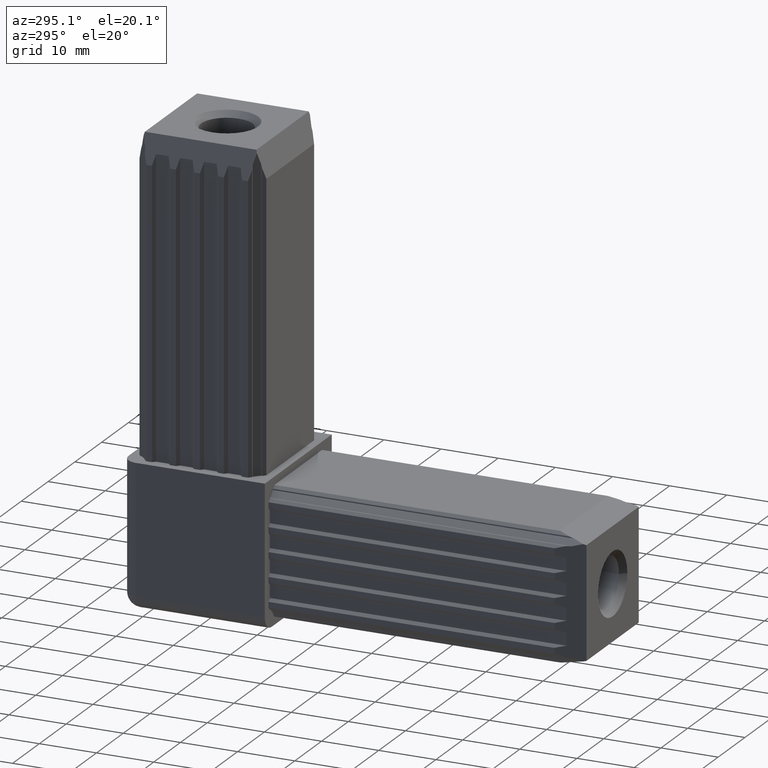
[diagram: clean part render]
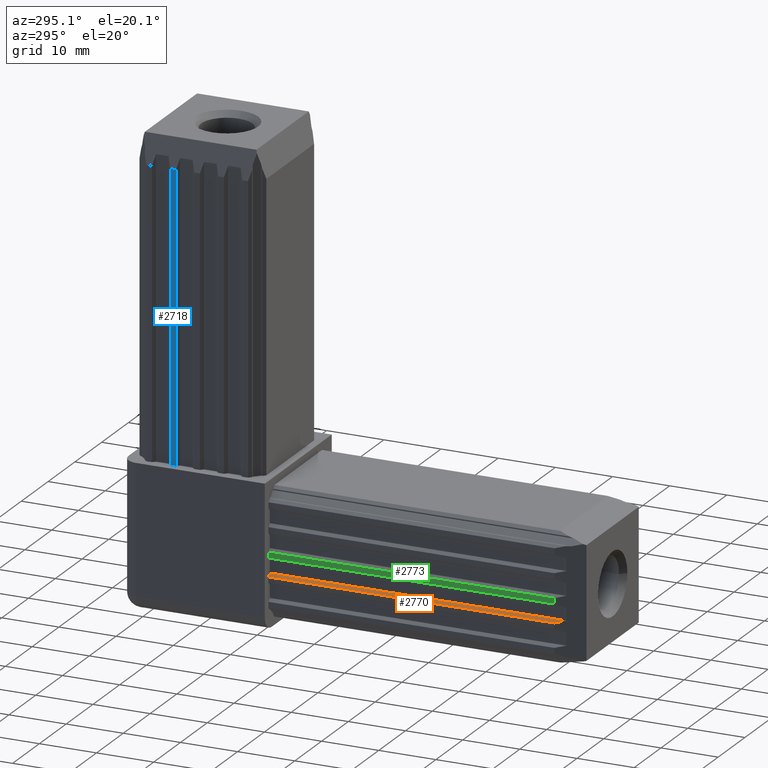
[diagram: same view with three faces highlighted in distinct colors, each labeled with its STEP entity id]
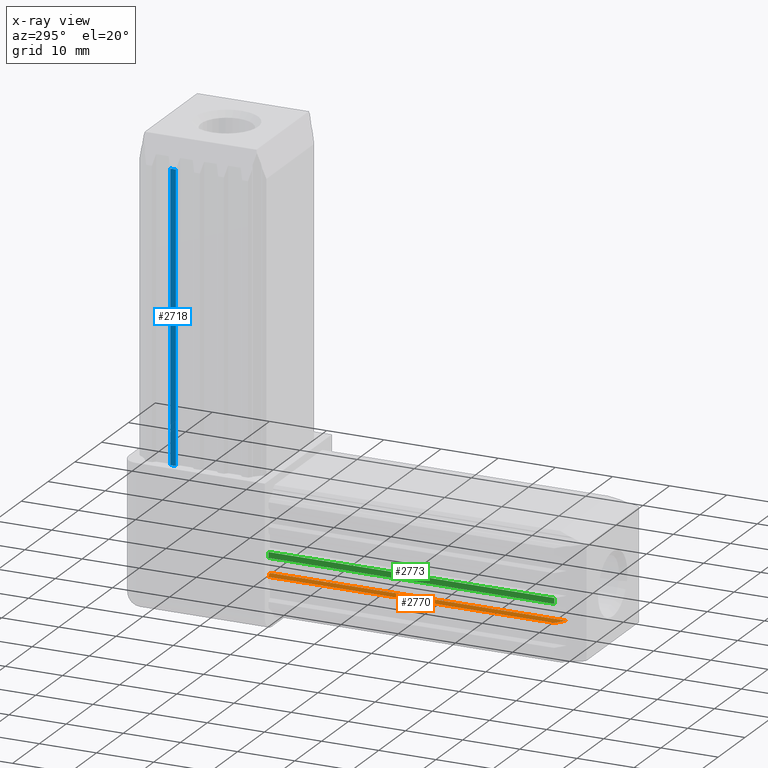
[diagram: x-ray of the same camera — body ghosted, the three highlighted faces saturated]
A machine part, auxiliary view with three faces highlighted in distinct colors.
The next image is the same camera in x-ray (body ghosted, the three faces saturated) — at least one of them is partly hidden behind the body in this view.
Their STEP definitions:

[orange] entity #2770 — the highlighted planar face has unit normal (-0.7071, 0, 0.7071).
#103=PLANE('',#2947);
#251=FACE_OUTER_BOUND('',#396,.T.);
#396=EDGE_LOOP('',(#2483,#2484,#2485,#2486));
#494=LINE('',#3831,#875);
#733=LINE('',#4304,#1114);
#785=LINE('',#4405,#1166);
#786=LINE('',#4407,#1167);
#875=VECTOR('',#3113,10.);
#1114=VECTOR('',#3434,10.);
#1166=VECTOR('',#3556,10.);
#1167=VECTOR('',#3559,10.);
#1275=VERTEX_POINT('',#3828);
#1276=VERTEX_POINT('',#3830);
#1468=VERTEX_POINT('',#4301);
#1469=VERTEX_POINT('',#4303);
#1550=EDGE_CURVE('',#1275,#1276,#494,.T.);
#1789=EDGE_CURVE('',#1468,#1469,#733,.T.);
#1841=EDGE_CURVE('',#1275,#1469,#785,.T.);
#1842=EDGE_CURVE('',#1276,#1468,#786,.T.);
#2483=ORIENTED_EDGE('',*,*,#1789,.F.);
#2484=ORIENTED_EDGE('',*,*,#1842,.F.);
#2485=ORIENTED_EDGE('',*,*,#1550,.F.);
#2486=ORIENTED_EDGE('',*,*,#1841,.T.);
#2770=ADVANCED_FACE('',(#251),#103,.T.);
#2947=AXIS2_PLACEMENT_3D('',#4406,#3557,#3558);
#3113=DIRECTION('',(0.707106781186557,0.,0.707106781186537));
#3434=DIRECTION('',(-0.250562807085733,0.935113126531031,-0.250562807085725));
#3556=DIRECTION('',(0.,-1.,0.));
#3557=DIRECTION('center_axis',(-0.707106781186538,0.,0.707106781186558));
#3558=DIRECTION('ref_axis',(-0.707106781186557,0.,-0.707106781186537));
#3559=DIRECTION('',(0.,-1.,0.));
#3828=CARTESIAN_POINT('',(-11.1,-12.5,-3.69999999999965));
#3830=CARTESIAN_POINT('',(-10.6,-12.5,-3.19999999999967));
#3831=CARTESIAN_POINT('',(-10.2750000000001,-12.5,-2.87499999999976));
#4301=CARTESIAN_POINT('',(-10.6,-64.3660254037844,-3.19999999999967));
#4303=CARTESIAN_POINT('',(-11.1,-62.5,-3.69999999999965));
#4304=CARTESIAN_POINT('',(-16.554241695265,-42.1444928765106,-9.15424169526445));
#4405=CARTESIAN_POINT('',(-11.1,-12.5,-3.69999999999965));
#4406=CARTESIAN_POINT('Origin',(-10.6,-12.5,-3.19999999999967));
#4407=CARTESIAN_POINT('',(-10.6,-12.5,-3.19999999999967));

[blue] entity #2718 — the highlighted planar face has unit normal (-1, 0, 0).
#51=PLANE('',#2895);
#199=FACE_OUTER_BOUND('',#344,.T.);
#344=EDGE_LOOP('',(#2206,#2207,#2208,#2209));
#559=LINE('',#3961,#940);
#642=LINE('',#4126,#1023);
#662=LINE('',#4164,#1043);
#663=LINE('',#4166,#1044);
#940=VECTOR('',#3182,10.);
#1023=VECTOR('',#3303,10.);
#1043=VECTOR('',#3329,10.);
#1044=VECTOR('',#3332,10.);
#1338=VERTEX_POINT('',#3958);
#1339=VERTEX_POINT('',#3960);
#1401=VERTEX_POINT('',#4123);
#1402=VERTEX_POINT('',#4125);
#1615=EDGE_CURVE('',#1338,#1339,#559,.T.);
#1698=EDGE_CURVE('',#1401,#1402,#642,.T.);
#1718=EDGE_CURVE('',#1338,#1402,#662,.T.);
#1719=EDGE_CURVE('',#1339,#1401,#663,.T.);
#2206=ORIENTED_EDGE('',*,*,#1698,.F.);
#2207=ORIENTED_EDGE('',*,*,#1719,.F.);
#2208=ORIENTED_EDGE('',*,*,#1615,.F.);
#2209=ORIENTED_EDGE('',*,*,#1718,.T.);
#2718=ADVANCED_FACE('',(#199),#51,.T.);
#2895=AXIS2_PLACEMENT_3D('',#4165,#3330,#3331);
#3182=DIRECTION('',(4.44089209850072E-15,1.,0.));
#3303=DIRECTION('',(-4.44089209850072E-15,-1.,-2.65169430352556E-27));
#3329=DIRECTION('',(0.,0.,1.));
#3330=DIRECTION('center_axis',(-1.,4.44089209850072E-15,0.));
#3331=DIRECTION('ref_axis',(-4.44089209850072E-15,-1.,0.));
#3332=DIRECTION('',(0.,0.,1.));
#3958=CARTESIAN_POINT('',(-11.0999999999999,3.70000000000003,12.5));
#3960=CARTESIAN_POINT('',(-11.0999999999999,4.70000000000001,12.5));
#3961=CARTESIAN_POINT('',(-11.0999999999999,2.35000000000003,12.5));
#4123=CARTESIAN_POINT('',(-11.0999999999999,4.70000000000001,62.4999999999996));
#4125=CARTESIAN_POINT('',(-11.0999999999999,3.70000000000003,62.4999999999996));
#4126=CARTESIAN_POINT('',(-11.0999999999999,0.37500000000005,62.4999999999996));
#4164=CARTESIAN_POINT('',(-11.0999999999999,3.70000000000003,12.5));
#4165=CARTESIAN_POINT('Origin',(-11.0999999999999,4.70000000000001,12.5));
#4166=CARTESIAN_POINT('',(-11.0999999999999,4.70000000000001,12.5));

[green] entity #2773 — the highlighted planar face has unit normal (-1, 0, 0).
#106=PLANE('',#2950);
#254=FACE_OUTER_BOUND('',#399,.T.);
#399=EDGE_LOOP('',(#2495,#2496,#2497,#2498));
#497=LINE('',#3837,#878);
#730=LINE('',#4298,#1111);
#744=LINE('',#4324,#1125);
#788=LINE('',#4411,#1169);
#878=VECTOR('',#3116,10.);
#1111=VECTOR('',#3431,10.);
#1125=VECTOR('',#3447,10.);
#1169=VECTOR('',#3565,10.);
#1278=VERTEX_POINT('',#3834);
#1279=VERTEX_POINT('',#3836);
#1465=VERTEX_POINT('',#4295);
#1466=VERTEX_POINT('',#4297);
#1553=EDGE_CURVE('',#1278,#1279,#497,.T.);
#1786=EDGE_CURVE('',#1465,#1466,#730,.T.);
#1800=EDGE_CURVE('',#1279,#1465,#744,.T.);
#1844=EDGE_CURVE('',#1278,#1466,#788,.T.);
#2495=ORIENTED_EDGE('',*,*,#1786,.F.);
#2496=ORIENTED_EDGE('',*,*,#1800,.F.);
#2497=ORIENTED_EDGE('',*,*,#1553,.F.);
#2498=ORIENTED_EDGE('',*,*,#1844,.T.);
#2773=ADVANCED_FACE('',(#254),#106,.T.);
#2950=AXIS2_PLACEMENT_3D('',#4412,#3566,#3567);
#3116=DIRECTION('',(1.66533453693722E-15,0.,1.));
#3431=DIRECTION('',(-1.66533453693722E-15,2.15335864993197E-27,-1.));
#3447=DIRECTION('',(0.,-1.,0.));
#3565=DIRECTION('',(0.,-1.,0.));
#3566=DIRECTION('center_axis',(-1.,0.,1.66533453693722E-15));
#3567=DIRECTION('ref_axis',(-1.66533453693722E-15,0.,-1.));
#3834=CARTESIAN_POINT('',(-11.1,-12.5,-0.500000000000171));
#3836=CARTESIAN_POINT('',(-11.1,-12.5,0.500000000000136));
#3837=CARTESIAN_POINT('',(-11.1,-12.5,0.250000000000067));
#4295=CARTESIAN_POINT('',(-11.1,-62.5,0.500000000000136));
#4297=CARTESIAN_POINT('',(-11.1,-62.5,-0.500000000000171));
#4298=CARTESIAN_POINT('',(-11.1,-62.5,-0.674999999999926));
#4324=CARTESIAN_POINT('',(-11.1,-12.5,0.500000000000136));
#4411=CARTESIAN_POINT('',(-11.1,-12.5,-0.500000000000171));
#4412=CARTESIAN_POINT('Origin',(-11.1,-12.5,0.500000000000136));